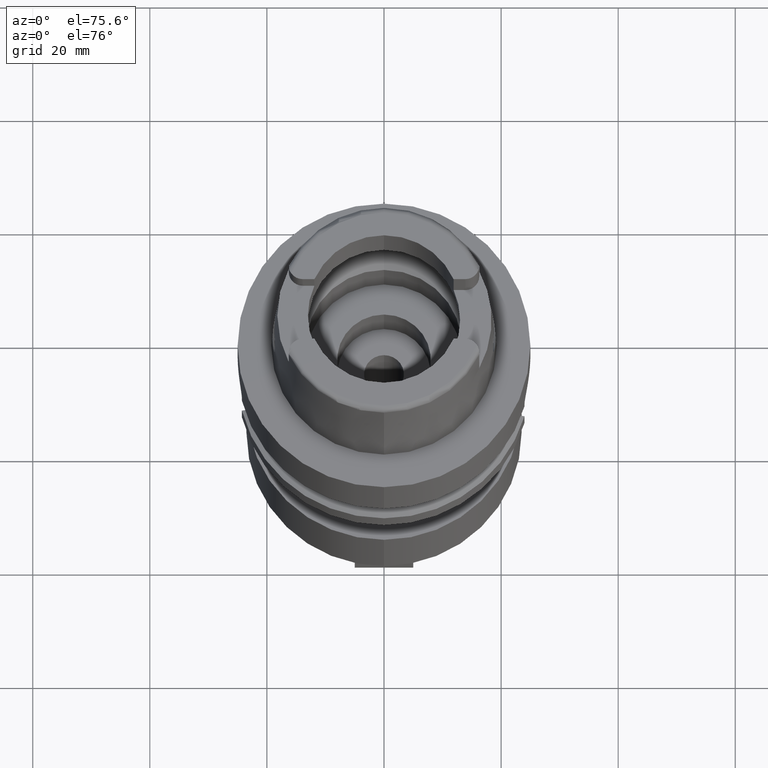
[diagram: clean part render]
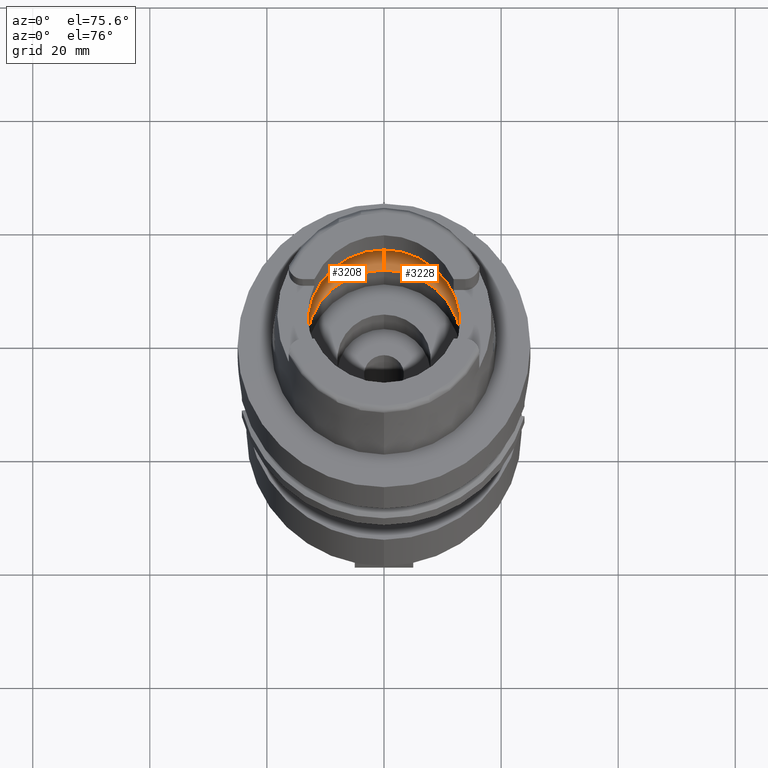
[diagram: same view with one multi-face feature highlighted, each face labeled with its STEP entity id]
A machine part, auxiliary view. The highlighted faces form ONE feature: a constant-radius fillet chain: 2 tangent blend faces with common blend radius 6 mm. The faces share edges in the B-rep.
Their STEP definitions:
[1] entity #3228 (Torus):
#648=CARTESIAN_POINT('',(0.E0,-1.E1,5.060987926547E0));
#649=DIRECTION('',(-1.E0,0.E0,0.E0));
#650=DIRECTION('',(0.E0,-5.5E-1,-8.351646544245E-1));
#651=AXIS2_PLACEMENT_3D('',#648,#649,#650);
#664=CARTESIAN_POINT('',(1.597371681169E1,0.E0,4.5E0));
#665=CARTESIAN_POINT('',(1.597371681169E1,-2.085162539672E-1,4.5E0));
#666=CARTESIAN_POINT('',(1.596977321397E1,-6.246498016926E-1,4.543602178503E0));
#667=CARTESIAN_POINT('',(1.594971470702E1,-1.219988833668E0,4.735783705932E0));
#668=CARTESIAN_POINT('',(1.592270414737E1,-1.579783213733E0,4.941392148613E0));
#669=CARTESIAN_POINT('',(1.590436354886E1,-1.746774199933E0,5.060987926547E0));
#674=CARTESIAN_POINT('',(0.E0,0.E0,5.060987926547E0));
#675=DIRECTION('',(0.E0,0.E0,-1.E0));
#676=DIRECTION('',(9.940227218040E-1,-1.091733874958E-1,0.E0));
#677=AXIS2_PLACEMENT_3D('',#674,#675,#676);
#682=CARTESIAN_POINT('',(0.E0,0.E0,4.999999999996E-2));
#683=DIRECTION('',(0.E0,0.E0,1.E0));
#684=DIRECTION('',(0.E0,-1.E0,0.E0));
#685=AXIS2_PLACEMENT_3D('',#682,#683,#684);
#690=CARTESIAN_POINT('',(0.E0,1.E1,5.060987926547E0));
#691=DIRECTION('',(1.E0,0.E0,0.E0));
#692=DIRECTION('',(0.E0,5.5E-1,-8.351646544245E-1));
#693=AXIS2_PLACEMENT_3D('',#690,#691,#692);
#698=CARTESIAN_POINT('',(0.E0,0.E0,5.060987926547E0));
#699=DIRECTION('',(0.E0,0.E0,-1.E0));
#700=DIRECTION('',(0.E0,1.E0,0.E0));
#701=AXIS2_PLACEMENT_3D('',#698,#699,#700);
#706=CARTESIAN_POINT('',(1.590436354886E1,1.746774199933E0,5.060987926547E0));
#707=CARTESIAN_POINT('',(1.592270428425E1,1.579781967424E0,4.941391256030E0));
#708=CARTESIAN_POINT('',(1.594971486944E1,1.219985545106E0,4.735782263526E0));
#709=CARTESIAN_POINT('',(1.596977322115E1,6.246483873889E-1,4.543602040485E0));
#710=CARTESIAN_POINT('',(1.597371681169E1,2.085156676364E-1,4.5E0));
#711=CARTESIAN_POINT('',(1.597371681169E1,0.E0,4.5E0));
#723=CARTESIAN_POINT('',(1.590436354886E1,-1.746774199933E0,5.060987926547E0));
#752=CARTESIAN_POINT('',(1.590436354886E1,1.746774199933E0,5.060987926547E0));
#2534=CARTESIAN_POINT('',(0.E0,-1.6E1,5.060987926547E0));
#2535=VERTEX_POINT('',#2534);
#2536=CARTESIAN_POINT('',(0.E0,1.6E1,5.060987926547E0));
#2537=VERTEX_POINT('',#2536);
#2542=VERTEX_POINT('',#723);
#2544=VERTEX_POINT('',#664);
#2545=VERTEX_POINT('',#752);
#2546=CARTESIAN_POINT('',(0.E0,1.33E1,4.999999999996E-2));
#2547=VERTEX_POINT('',#2546);
#2548=CARTESIAN_POINT('',(0.E0,-1.33E1,4.999999999996E-2));
#2549=VERTEX_POINT('',#2548);
#3209=CARTESIAN_POINT('',(0.E0,0.E0,5.060987926547E0));
#3210=DIRECTION('',(0.E0,0.E0,1.E0));
#3211=DIRECTION('',(0.E0,1.E0,0.E0));
#3212=AXIS2_PLACEMENT_3D('',#3209,#3210,#3211);
#3213=TOROIDAL_SURFACE('',#3212,1.E1,6.E0);
#3215=ORIENTED_EDGE('',*,*,#3214,.T.);
#3217=ORIENTED_EDGE('',*,*,#3216,.T.);
#3218=ORIENTED_EDGE('',*,*,#3203,.F.);
#3220=ORIENTED_EDGE('',*,*,#3219,.T.);
#3221=ORIENTED_EDGE('',*,*,#3199,.T.);
#3223=ORIENTED_EDGE('',*,*,#3222,.T.);
#3225=ORIENTED_EDGE('',*,*,#3224,.T.);
#3226=EDGE_LOOP('',(#3215,#3217,#3218,#3220,#3221,#3223,#3225));
#3227=FACE_OUTER_BOUND('',#3226,.F.);
#652=CIRCLE('',#651,6.E0);
#670=B_SPLINE_CURVE_WITH_KNOTS('',3,(#664,#665,#666,#667,#668,#669),
.UNSPECIFIED.,.F.,.F.,(4,1,1,4),(0.E0,3.333333333333E-1,6.666666666667E-1,1.E0),
.UNSPECIFIED.);
#678=CIRCLE('',#677,1.6E1);
#686=CIRCLE('',#685,1.33E1);
#694=CIRCLE('',#693,6.E0);
#702=CIRCLE('',#701,1.6E1);
#712=B_SPLINE_CURVE_WITH_KNOTS('',3,(#706,#707,#708,#709,#710,#711),
.UNSPECIFIED.,.F.,.F.,(4,1,1,4),(0.E0,3.333333333333E-1,6.666666666667E-1,1.E0),
.UNSPECIFIED.);
#3199=EDGE_CURVE('',#2547,#2537,#694,.T.);
#3203=EDGE_CURVE('',#2549,#2535,#652,.T.);
#3214=EDGE_CURVE('',#2544,#2542,#670,.T.);
#3216=EDGE_CURVE('',#2542,#2535,#678,.T.);
#3219=EDGE_CURVE('',#2549,#2547,#686,.T.);
#3222=EDGE_CURVE('',#2537,#2545,#702,.T.);
#3224=EDGE_CURVE('',#2545,#2544,#712,.T.);
#3228=ADVANCED_FACE('',(#3227),#3213,.F.);
[2] entity #3208 (Torus):
#569=CARTESIAN_POINT('',(-1.590436354886E1,-1.746774199933E0,5.060987926547E0));
#612=CARTESIAN_POINT('',(-1.590436354886E1,-1.746774199933E0,5.060987926547E0));
#613=CARTESIAN_POINT('',(-1.592270430230E1,-1.579781803079E0,4.941391138329E0));
#614=CARTESIAN_POINT('',(-1.594971491339E1,-1.219985133517E0,4.735781937568E0));
#615=CARTESIAN_POINT('',(-1.596977328026E1,-6.246457304976E-1,
4.543601441830E0));
#616=CARTESIAN_POINT('',(-1.597371681169E1,-2.085144974671E-1,4.5E0));
#617=CARTESIAN_POINT('',(-1.597371681169E1,0.E0,4.5E0));
#622=CARTESIAN_POINT('',(-1.597371681169E1,0.E0,4.5E0));
#623=CARTESIAN_POINT('',(-1.597371681169E1,2.085174486165E-1,4.5E0));
#624=CARTESIAN_POINT('',(-1.596977315422E1,6.246525164378E-1,4.543602785255E0));
#625=CARTESIAN_POINT('',(-1.594971465828E1,1.219989338210E0,4.735784073710E0));
#626=CARTESIAN_POINT('',(-1.592270412544E1,1.579783413368E0,4.941392291588E0));
#627=CARTESIAN_POINT('',(-1.590436354886E1,1.746774199933E0,5.060987926547E0));
#632=CARTESIAN_POINT('',(0.E0,0.E0,5.060987926547E0));
#633=DIRECTION('',(0.E0,0.E0,-1.E0));
#634=DIRECTION('',(-9.940227218040E-1,1.091733874958E-1,0.E0));
#635=AXIS2_PLACEMENT_3D('',#632,#633,#634);
#640=CARTESIAN_POINT('',(0.E0,0.E0,4.999999999996E-2));
#641=DIRECTION('',(0.E0,0.E0,1.E0));
#642=DIRECTION('',(0.E0,1.E0,0.E0));
#643=AXIS2_PLACEMENT_3D('',#640,#641,#642);
#648=CARTESIAN_POINT('',(0.E0,-1.E1,5.060987926547E0));
#649=DIRECTION('',(-1.E0,0.E0,0.E0));
#650=DIRECTION('',(0.E0,-5.5E-1,-8.351646544245E-1));
#651=AXIS2_PLACEMENT_3D('',#648,#649,#650);
#656=CARTESIAN_POINT('',(0.E0,0.E0,5.060987926547E0));
#657=DIRECTION('',(0.E0,0.E0,-1.E0));
#658=DIRECTION('',(0.E0,-1.E0,0.E0));
#659=AXIS2_PLACEMENT_3D('',#656,#657,#658);
#690=CARTESIAN_POINT('',(0.E0,1.E1,5.060987926547E0));
#691=DIRECTION('',(1.E0,0.E0,0.E0));
#692=DIRECTION('',(0.E0,5.5E-1,-8.351646544245E-1));
#693=AXIS2_PLACEMENT_3D('',#690,#691,#692);
#2533=VERTEX_POINT('',#569);
#2534=CARTESIAN_POINT('',(0.E0,-1.6E1,5.060987926547E0));
#2535=VERTEX_POINT('',#2534);
#2536=CARTESIAN_POINT('',(0.E0,1.6E1,5.060987926547E0));
#2537=VERTEX_POINT('',#2536);
#2538=CARTESIAN_POINT('',(-1.590436354886E1,1.746774199933E0,5.060987926547E0));
#2539=VERTEX_POINT('',#2538);
#2540=CARTESIAN_POINT('',(-1.597371681169E1,0.E0,4.5E0));
#2541=VERTEX_POINT('',#2540);
#2546=CARTESIAN_POINT('',(0.E0,1.33E1,4.999999999996E-2));
#2547=VERTEX_POINT('',#2546);
#2548=CARTESIAN_POINT('',(0.E0,-1.33E1,4.999999999996E-2));
#2549=VERTEX_POINT('',#2548);
#3191=CARTESIAN_POINT('',(0.E0,0.E0,5.060987926547E0));
#3192=DIRECTION('',(0.E0,0.E0,1.E0));
#3193=DIRECTION('',(0.E0,1.E0,0.E0));
#3194=AXIS2_PLACEMENT_3D('',#3191,#3192,#3193);
#3195=TOROIDAL_SURFACE('',#3194,1.E1,6.E0);
#3196=ORIENTED_EDGE('',*,*,#3172,.T.);
#3197=ORIENTED_EDGE('',*,*,#3183,.T.);
#3198=ORIENTED_EDGE('',*,*,#3154,.T.);
#3200=ORIENTED_EDGE('',*,*,#3199,.F.);
#3202=ORIENTED_EDGE('',*,*,#3201,.T.);
#3204=ORIENTED_EDGE('',*,*,#3203,.T.);
#3205=ORIENTED_EDGE('',*,*,#3147,.T.);
#3206=EDGE_LOOP('',(#3196,#3197,#3198,#3200,#3202,#3204,#3205));
#3207=FACE_OUTER_BOUND('',#3206,.F.);
#618=B_SPLINE_CURVE_WITH_KNOTS('',3,(#612,#613,#614,#615,#616,#617),
.UNSPECIFIED.,.F.,.F.,(4,1,1,4),(0.E0,3.333333333333E-1,6.666666666667E-1,1.E0),
.UNSPECIFIED.);
#628=B_SPLINE_CURVE_WITH_KNOTS('',3,(#622,#623,#624,#625,#626,#627),
.UNSPECIFIED.,.F.,.F.,(4,1,1,4),(0.E0,3.333333333333E-1,6.666666666667E-1,1.E0),
.UNSPECIFIED.);
#636=CIRCLE('',#635,1.6E1);
#644=CIRCLE('',#643,1.33E1);
#652=CIRCLE('',#651,6.E0);
#660=CIRCLE('',#659,1.6E1);
#694=CIRCLE('',#693,6.E0);
#3147=EDGE_CURVE('',#2535,#2533,#660,.T.);
#3154=EDGE_CURVE('',#2539,#2537,#636,.T.);
#3172=EDGE_CURVE('',#2533,#2541,#618,.T.);
#3183=EDGE_CURVE('',#2541,#2539,#628,.T.);
#3199=EDGE_CURVE('',#2547,#2537,#694,.T.);
#3201=EDGE_CURVE('',#2547,#2549,#644,.T.);
#3203=EDGE_CURVE('',#2549,#2535,#652,.T.);
#3208=ADVANCED_FACE('',(#3207),#3195,.F.);